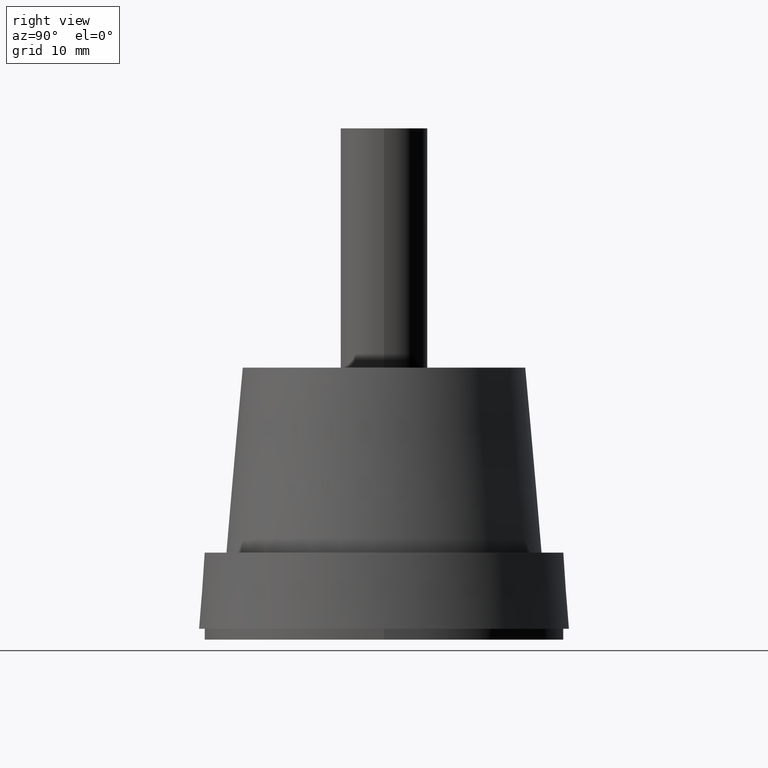
[diagram: clean part render]
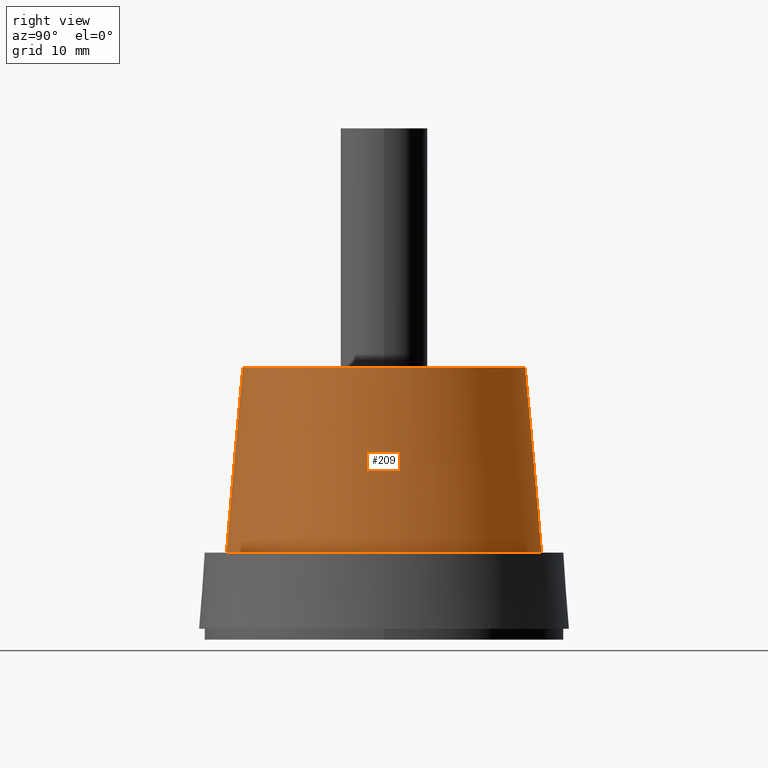
[diagram: same view with one face highlighted and labeled with its STEP entity id]
A machine part, right view. The second image highlights one B-rep face of the part: STEP entity #209.
In plain terms, the highlighted conical surface has half-angle 5.042 deg.
Its self-contained STEP definition (entity closure, byte-faithful):
#15=CONICAL_SURFACE('',#244,14.5,5.04245106917092);
#38=FACE_BOUND('',#88,.T.);
#57=FACE_OUTER_BOUND('',#87,.T.);
#87=EDGE_LOOP('',(#177));
#88=EDGE_LOOP('',(#178));
#112=CIRCLE('',#243,13.);
#113=CIRCLE('',#245,14.5);
#130=VERTEX_POINT('',#370);
#131=VERTEX_POINT('',#373);
#148=EDGE_CURVE('',#130,#130,#112,.T.);
#149=EDGE_CURVE('',#131,#131,#113,.T.);
#177=ORIENTED_EDGE('',*,*,#149,.F.);
#178=ORIENTED_EDGE('',*,*,#148,.T.);
#209=ADVANCED_FACE('',(#57,#38),#15,.T.);
#243=AXIS2_PLACEMENT_3D('',#371,#308,#309);
#244=AXIS2_PLACEMENT_3D('',#372,#310,#311);
#245=AXIS2_PLACEMENT_3D('',#374,#312,#313);
#308=DIRECTION('center_axis',(0.,0.,-1.));
#309=DIRECTION('ref_axis',(-1.,0.,0.));
#310=DIRECTION('center_axis',(0.,0.,-1.));
#311=DIRECTION('ref_axis',(-1.,0.,0.));
#312=DIRECTION('center_axis',(0.,0.,-1.));
#313=DIRECTION('ref_axis',(-1.,0.,0.));
#370=CARTESIAN_POINT('',(-13.,0.,25.));
#371=CARTESIAN_POINT('Origin',(0.,0.,25.));
#372=CARTESIAN_POINT('Origin',(0.,0.,8.));
#373=CARTESIAN_POINT('',(-14.5,0.,8.));
#374=CARTESIAN_POINT('Origin',(0.,0.,8.));